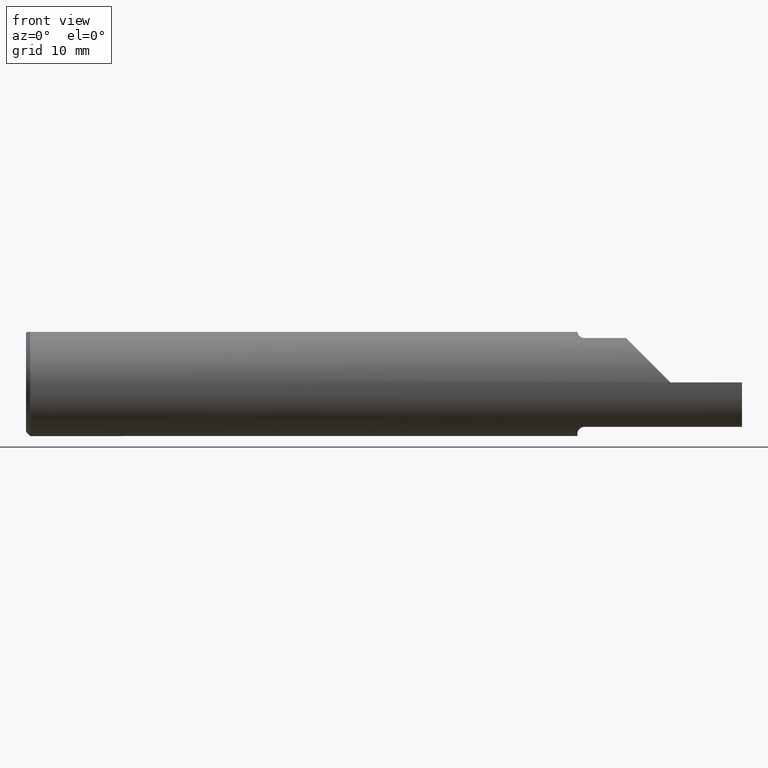
[diagram: clean part render]
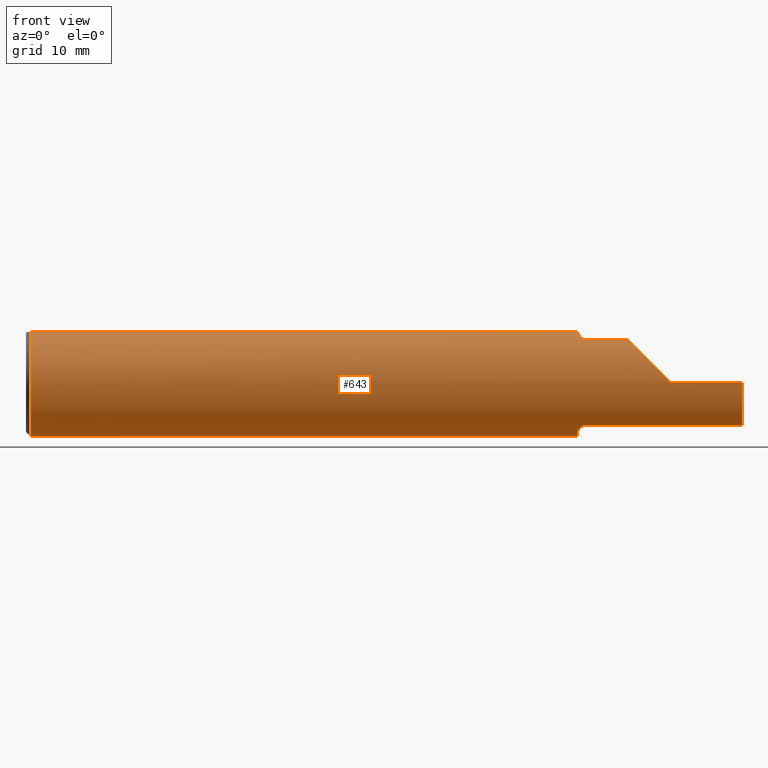
[diagram: same view with one face highlighted and labeled with its STEP entity id]
A machine part, front view. The second image highlights one B-rep face of the part: STEP entity #643.
In plain terms, the highlighted cylindrical surface (partial cylindrical patch) has radius 4.7587 mm, axis along (-1, -0, -0).
Its self-contained STEP definition (entity closure, byte-faithful):
#2 = VECTOR ( 'NONE', #434, 39.37007874015748143 ) ;
#5 = DIRECTION ( 'NONE',  ( 0.000000000000000000, 0.000000000000000000, -1.000000000000000000 ) ) ;
#8 = EDGE_CURVE ( 'NONE', #653, #728, #361, .T. ) ;
#9 = CARTESIAN_POINT ( 'NONE',  ( 2.189466948591779705, -0.1872365873764759991, 0.06088305140821962530 ) ) ;
#10 = ORIENTED_EDGE ( 'NONE', *, *, #814, .T. ) ;
#19 = CIRCLE ( 'NONE', #507, 0.1873499999999999888 ) ;
#27 = CARTESIAN_POINT ( 'NONE',  ( 1.925439896557285868, -0.06737885671737320337, 0.1748695014197203801 ) ) ;
#34 = CARTESIAN_POINT ( 'NONE',  ( 1.934555280550786183, -0.1002805646452516880, 0.1583000352897936946 ) ) ;
#38 = FACE_OUTER_BOUND ( 'NONE', #615, .T. ) ;
#48 = VECTOR ( 'NONE', #893, 39.37007874015748143 ) ;
#49 = EDGE_CURVE ( 'NONE', #421, #764, #953, .T. ) ;
#53 = DIRECTION ( 'NONE',  ( -1.000000000000000000, -0.000000000000000000, -0.000000000000000000 ) ) ;
#54 = ORIENTED_EDGE ( 'NONE', *, *, #312, .T. ) ;
#64 = VECTOR ( 'NONE', #815, 39.37007874015748143 ) ;
#70 = CARTESIAN_POINT ( 'NONE',  ( 1.934565425567610131, -0.1003007981862104464, -0.1582877711856871539 ) ) ;
#71 = DIRECTION ( 'NONE',  ( -1.000000000000000000, -0.000000000000000000, -0.000000000000000000 ) ) ;
#76 = ORIENTED_EDGE ( 'NONE', *, *, #49, .T. ) ;
#106 = CARTESIAN_POINT ( 'NONE',  ( 1.926478687487613861, -0.07534999999999991704, 0.1715295892841814940 ) ) ;
#108 = LINE ( 'NONE', #220, #684 ) ;
#121 = CARTESIAN_POINT ( 'NONE',  ( 2.500000000000000000, 0.000000000000000000, 0.000000000000000000 ) ) ;
#134 = CARTESIAN_POINT ( 'NONE',  ( 1.925210246786177137, -0.06325108694718213631, 0.1763499999999999790 ) ) ;
#135 = CARTESIAN_POINT ( 'NONE',  ( 1.950000000000000178, -0.1111655275381552427, 0.1508053314281814494 ) ) ;
#137 = CARTESIAN_POINT ( 'NONE',  ( 1.931244079504314426, -0.09361870253556393850, -0.1623293170049111833 ) ) ;
#147 = ORIENTED_EDGE ( 'NONE', *, *, #8, .T. ) ;
#148 = CARTESIAN_POINT ( 'NONE',  ( 0.01500000000000079568, 0.000000000000000000, 0.000000000000000000 ) ) ;
#151 = CARTESIAN_POINT ( 'NONE',  ( 0.01500000000000016251, -0.06325108694718359348, 0.1763499999999999790 ) ) ;
#153 = CARTESIAN_POINT ( 'NONE',  ( 0.01500000000000079568, 0.06325108694718213631, 0.1763499999999999790 ) ) ;
#160 = ORIENTED_EDGE ( 'NONE', *, *, #621, .T. ) ;
#165 = ORIENTED_EDGE ( 'NONE', *, *, #869, .F. ) ;
#175 = B_SPLINE_CURVE_WITH_KNOTS ( 'NONE', 3,
 ( #106, #709, #27, #483 ),
 .UNSPECIFIED., .F., .F.,
 ( 4, 4 ),
 ( 0.001294476306160001564, 0.001630041063685024744 ),
 .UNSPECIFIED. ) ;
#185 = CARTESIAN_POINT ( 'NONE',  ( 1.925471628390130530, -0.06898398245409141649, -0.1743260713610383095 ) ) ;
#186 = CARTESIAN_POINT ( 'NONE',  ( 2.135462471271803331, -0.1598910295916955993, 0.1148875287281965335 ) ) ;
#188 = VERTEX_POINT ( 'NONE', #949 ) ;
#199 = CARTESIAN_POINT ( 'NONE',  ( 2.500000000000000000, -0.1873500000000000165, -4.469813191451678053E-17 ) ) ;
#202 = VERTEX_POINT ( 'NONE', #420 ) ;
#211 = CARTESIAN_POINT ( 'NONE',  ( 2.500000000000000000, -0.06325108694718213631, 0.1763499999999999790 ) ) ;
#220 = CARTESIAN_POINT ( 'NONE',  ( 2.172500000000000320, -0.1111655275381552427, 0.1508053314281814494 ) ) ;
#225 = CARTESIAN_POINT ( 'NONE',  ( 1.936565098989693423, -0.1034641170928918136, 0.1562236412899350446 ) ) ;
#228 = VERTEX_POINT ( 'NONE', #134 ) ;
#232 = AXIS2_PLACEMENT_3D ( 'NONE', #121, #53, #935 ) ;
#244 = VERTEX_POINT ( 'NONE', #199 ) ;
#263 = ORIENTED_EDGE ( 'NONE', *, *, #343, .T. ) ;
#284 = LINE ( 'NONE', #750, #855 ) ;
#292 = CARTESIAN_POINT ( 'NONE',  ( 1.927865082443893430, -0.08283314709417988198, -0.1680932348365286877 ) ) ;
#304 = DIRECTION ( 'NONE',  ( 1.000000000000000000, -0.000000000000000000, -0.000000000000000000 ) ) ;
#305 = ORIENTED_EDGE ( 'NONE', *, *, #768, .F. ) ;
#309 = VERTEX_POINT ( 'NONE', #808 ) ;
#312 = EDGE_CURVE ( 'NONE', #228, #421, #967, .T. ) ;
#318 = CARTESIAN_POINT ( 'NONE',  ( 1.929954557781144775, -0.09009039404888789793, 0.1643178600608700690 ) ) ;
#338 = CARTESIAN_POINT ( 'NONE',  ( 2.250000000000000000, -0.1873499999999999888, -4.469813191451678053E-17 ) ) ;
#340 = CARTESIAN_POINT ( 'NONE',  ( 1.925000000000000266, -0.05559153948241538773, -0.1789122780526117285 ) ) ;
#341 = ORIENTED_EDGE ( 'NONE', *, *, #699, .F. ) ;
#343 = EDGE_CURVE ( 'NONE', #309, #188, #804, .T. ) ;
#349 = AXIS2_PLACEMENT_3D ( 'NONE', #552, #397, #854 ) ;
#351 = CIRCLE ( 'NONE', #477, 0.1873499999999999888 ) ;
#361 = CIRCLE ( 'NONE', #349, 0.1873499999999999888 ) ;
#370 = CARTESIAN_POINT ( 'NONE',  ( 1.936554031168355783, -0.1034518926464918220, -0.1562319468430166391 ) ) ;
#378 =( BOUNDED_CURVE ( )  B_SPLINE_CURVE ( 3, ( #571, #9, #186, #489 ),
 .UNSPECIFIED., .F., .T. ) 
 B_SPLINE_CURVE_WITH_KNOTS ( ( 4, 4 ),
 ( 4.714257142666966161, 5.647961724597865718 ),
 .UNSPECIFIED. ) 
 CURVE ( )  GEOMETRIC_REPRESENTATION_ITEM ( )  RATIONAL_B_SPLINE_CURVE ( ( 1.000000000000000000, 0.9286596154903572486, 0.9286596154903572486, 1.000000000000000000 ) ) 
 REPRESENTATION_ITEM ( '' )  );
#397 = DIRECTION ( 'NONE',  ( -1.000000000000000000, -0.000000000000000000, -0.000000000000000000 ) ) ;
#409 = CIRCLE ( 'NONE', #524, 0.1873499999999999888 ) ;
#413 = CARTESIAN_POINT ( 'NONE',  ( 0.01500000000000079568, 0.000000000000000000, 0.000000000000000000 ) ) ;
#420 = CARTESIAN_POINT ( 'NONE',  ( 2.500000000000000000, -0.1111655275381552010, -0.1508053314281814494 ) ) ;
#421 = VERTEX_POINT ( 'NONE', #151 ) ;
#434 = DIRECTION ( 'NONE',  ( -1.000000000000000000, -0.000000000000000000, -0.000000000000000000 ) ) ;
#440 = CARTESIAN_POINT ( 'NONE',  ( 2.500000000000000000, 0.000000000000000000, 0.000000000000000000 ) ) ;
#441 = EDGE_CURVE ( 'NONE', #817, #851, #676, .T. ) ;
#445 = DIRECTION ( 'NONE',  ( 1.000000000000000000, 0.000000000000000000, 0.000000000000000000 ) ) ;
#454 = ORIENTED_EDGE ( 'NONE', *, *, #668, .T. ) ;
#460 = CARTESIAN_POINT ( 'NONE',  ( 1.942178388317598481, -0.1087237717143361843, 0.1525793417461625279 ) ) ;
#464 = CARTESIAN_POINT ( 'NONE',  ( 1.950000000000000178, -0.1111655275381552427, -0.1508053314281814494 ) ) ;
#476 = EDGE_CURVE ( 'NONE', #592, #228, #175, .T. ) ;
#477 = AXIS2_PLACEMENT_3D ( 'NONE', #520, #754, #5 ) ;
#483 = CARTESIAN_POINT ( 'NONE',  ( 1.925210246786177137, -0.06325108694718213631, 0.1763499999999999790 ) ) ;
#489 = CARTESIAN_POINT ( 'NONE',  ( 2.099544668571818207, -0.1111655275381547570, 0.1508053314281816715 ) ) ;
#495 = VERTEX_POINT ( 'NONE', #559 ) ;
#507 = AXIS2_PLACEMENT_3D ( 'NONE', #440, #445, #527 ) ;
#512 = ORIENTED_EDGE ( 'NONE', *, *, #929, .T. ) ;
#515 = CARTESIAN_POINT ( 'NONE',  ( 2.172500000000000320, -0.1111655275381552427, -0.1508053314281814494 ) ) ;
#520 = CARTESIAN_POINT ( 'NONE',  ( 1.925000000000000266, 0.000000000000000000, 0.000000000000000000 ) ) ;
#524 = AXIS2_PLACEMENT_3D ( 'NONE', #148, #304, #539 ) ;
#527 = DIRECTION ( 'NONE',  ( 0.000000000000000000, 0.000000000000000000, -1.000000000000000000 ) ) ;
#539 = DIRECTION ( 'NONE',  ( 0.000000000000000000, 0.000000000000000000, -1.000000000000000000 ) ) ;
#547 = B_SPLINE_CURVE_WITH_KNOTS ( 'NONE', 3,
 ( #340, #570, #185, #943 ),
 .UNSPECIFIED., .F., .F.,
 ( 4, 4 ),
 ( 0.000000000000000000, 0.0005353161947638540065 ),
 .UNSPECIFIED. ) ;
#549 = CARTESIAN_POINT ( 'NONE',  ( 1.945787183057445802, -0.1105751300725857506, -0.1512430703507947061 ) ) ;
#552 = CARTESIAN_POINT ( 'NONE',  ( 2.250000000000000000, 0.000000000000000000, 0.000000000000000000 ) ) ;
#559 = CARTESIAN_POINT ( 'NONE',  ( 1.925000000000000266, -0.05559153948241538773, -0.1789122780526117285 ) ) ;
#570 = CARTESIAN_POINT ( 'NONE',  ( 1.925000000000000266, -0.06239895713696063523, -0.1767970804181337729 ) ) ;
#571 = CARTESIAN_POINT ( 'NONE',  ( 2.250000000000000000, -0.1873496730715054903, 0.0003499999999991848933 ) ) ;
#586 = CARTESIAN_POINT ( 'NONE',  ( 2.099544668571818207, -0.1111655275381547570, 0.1508053314281816715 ) ) ;
#592 = VERTEX_POINT ( 'NONE', #622 ) ;
#598 = CARTESIAN_POINT ( 'NONE',  ( 1.929948053471882696, -0.09007176591159221646, -0.1643281559590496765 ) ) ;
#600 = CARTESIAN_POINT ( 'NONE',  ( 2.500000000000000000, 0.06325108694718213631, 0.1763499999999999790 ) ) ;
#615 = EDGE_LOOP ( 'NONE', ( #341, #838, #454, #147, #10, #305, #631, #770, #54, #76, #512, #813, #165, #160, #263 ) ) ;
#618 = CARTESIAN_POINT ( 'NONE',  ( 1.950000000000000178, -0.1111655275381552427, 0.1508053314281814494 ) ) ;
#621 = EDGE_CURVE ( 'NONE', #495, #309, #547, .T. ) ;
#622 = CARTESIAN_POINT ( 'NONE',  ( 1.926478687487613861, -0.07534999999999991704, 0.1715295892841814940 ) ) ;
#631 = ORIENTED_EDGE ( 'NONE', *, *, #752, .T. ) ;
#638 = CARTESIAN_POINT ( 'NONE',  ( 1.931253303781170105, -0.09363708362384966233, 0.1623181733163006346 ) ) ;
#643 = ADVANCED_FACE ( 'NONE', ( #38 ), #805, .T. ) ;
#653 = VERTEX_POINT ( 'NONE', #338 ) ;
#656 = EDGE_CURVE ( 'NONE', #244, #202, #19, .T. ) ;
#659 = CARTESIAN_POINT ( 'NONE',  ( 2.250000000000000000, -0.1873496730715054903, 0.0003499999999991848933 ) ) ;
#668 = EDGE_CURVE ( 'NONE', #244, #653, #284, .T. ) ;
#672 = CARTESIAN_POINT ( 'NONE',  ( 1.927076714346777297, -0.07913036352372353199, -0.1698689405721950929 ) ) ;
#673 = CARTESIAN_POINT ( 'NONE',  ( 1.947840824787755443, -0.1111655275381552566, 0.1508053314281813939 ) ) ;
#676 = LINE ( 'NONE', #600, #48 ) ;
#677 = CARTESIAN_POINT ( 'NONE',  ( 1.940623984237018540, -0.1074936703607914240, -0.1534529456673628667 ) ) ;
#682 = CARTESIAN_POINT ( 'NONE',  ( 1.927871177471788711, -0.08285827945689638874, 0.1680807655869951678 ) ) ;
#684 = VECTOR ( 'NONE', #831, 39.37007874015748143 ) ;
#699 = EDGE_CURVE ( 'NONE', #202, #188, #888, .T. ) ;
#708 = VERTEX_POINT ( 'NONE', #586 ) ;
#709 = CARTESIAN_POINT ( 'NONE',  ( 1.925855685269239892, -0.07141175738523403149, 0.1732595915669420672 ) ) ;
#714 = CARTESIAN_POINT ( 'NONE',  ( 1.940624326360086638, -0.1074933921529483416, 0.1534530870474001274 ) ) ;
#728 = VERTEX_POINT ( 'NONE', #659 ) ;
#750 = CARTESIAN_POINT ( 'NONE',  ( 2.500000000000000000, -0.1873499999999999888, -4.469813191451678053E-17 ) ) ;
#752 = EDGE_CURVE ( 'NONE', #850, #592, #863, .T. ) ;
#754 = DIRECTION ( 'NONE',  ( 1.000000000000000000, 0.000000000000000000, 0.000000000000000000 ) ) ;
#757 = CARTESIAN_POINT ( 'NONE',  ( 0.01500000000000079568, 0.000000000000000000, -0.1873499999999999888 ) ) ;
#764 = VERTEX_POINT ( 'NONE', #757 ) ;
#768 = EDGE_CURVE ( 'NONE', #850, #708, #108, .T. ) ;
#770 = ORIENTED_EDGE ( 'NONE', *, *, #476, .T. ) ;
#788 = DIRECTION ( 'NONE',  ( 1.000000000000000000, -0.000000000000000000, -0.000000000000000000 ) ) ;
#804 = B_SPLINE_CURVE_WITH_KNOTS ( 'NONE', 3,
 ( #819, #672, #292, #598, #137, #70, #370, #677, #978, #549, #904, #464 ),
 .UNSPECIFIED., .F., .F.,
 ( 4, 2, 2, 2, 2, 4 ),
 ( 0.0005353161947638540065, 0.0008532056447682662310, 0.001171095094772678456, 0.001488984544777090680, 0.001647929269779296792, 0.001806873994781502905 ),
 .UNSPECIFIED. ) ;
#805 = CYLINDRICAL_SURFACE ( 'NONE', #232, 0.1873499999999999888 ) ;
#807 = AXIS2_PLACEMENT_3D ( 'NONE', #413, #788, #877 ) ;
#808 = CARTESIAN_POINT ( 'NONE',  ( 1.926478687487605646, -0.07534999999994895781, -0.1715295892842039482 ) ) ;
#813 = ORIENTED_EDGE ( 'NONE', *, *, #441, .T. ) ;
#814 = EDGE_CURVE ( 'NONE', #728, #708, #378, .T. ) ;
#815 = DIRECTION ( 'NONE',  ( -1.000000000000000000, -0.000000000000000000, -0.000000000000000000 ) ) ;
#817 = VERTEX_POINT ( 'NONE', #153 ) ;
#819 = CARTESIAN_POINT ( 'NONE',  ( 1.926478687487605646, -0.07534999999994895781, -0.1715295892842039482 ) ) ;
#831 = DIRECTION ( 'NONE',  ( 1.000000000000000000, 0.000000000000000000, 0.000000000000000000 ) ) ;
#838 = ORIENTED_EDGE ( 'NONE', *, *, #656, .F. ) ;
#846 = CARTESIAN_POINT ( 'NONE',  ( 1.927079511614913532, -0.07914804615830652035, 0.1698611728947836963 ) ) ;
#850 = VERTEX_POINT ( 'NONE', #618 ) ;
#851 = VERTEX_POINT ( 'NONE', #916 ) ;
#854 = DIRECTION ( 'NONE',  ( 0.000000000000000000, 0.000000000000000000, 1.000000000000000000 ) ) ;
#855 = VECTOR ( 'NONE', #71, 39.37007874015748143 ) ;
#863 = B_SPLINE_CURVE_WITH_KNOTS ( 'NONE', 3,
 ( #135, #673, #974, #460, #714, #225, #34, #638, #318, #682, #846, #940 ),
 .UNSPECIFIED., .F., .F.,
 ( 4, 2, 2, 2, 2, 4 ),
 ( 0.000000000000000000, 0.0001618095382699952353, 0.0003236190765399904706, 0.0006472381530799941685, 0.0009708572296199979206, 0.001294476306160001564 ),
 .UNSPECIFIED. ) ;
#869 = EDGE_CURVE ( 'NONE', #495, #851, #351, .T. ) ;
#877 = DIRECTION ( 'NONE',  ( 0.000000000000000000, 0.000000000000000000, -1.000000000000000000 ) ) ;
#888 = LINE ( 'NONE', #515, #2 ) ;
#893 = DIRECTION ( 'NONE',  ( 1.000000000000000000, 0.000000000000000000, 0.000000000000000000 ) ) ;
#904 = CARTESIAN_POINT ( 'NONE',  ( 1.947842917297107013, -0.1111655275381357721, -0.1508053314282012392 ) ) ;
#916 = CARTESIAN_POINT ( 'NONE',  ( 1.925000000000000266, 0.06325108694718213631, 0.1763499999999999790 ) ) ;
#929 = EDGE_CURVE ( 'NONE', #764, #817, #409, .T. ) ;
#935 = DIRECTION ( 'NONE',  ( 0.000000000000000000, 0.000000000000000000, 1.000000000000000000 ) ) ;
#940 = CARTESIAN_POINT ( 'NONE',  ( 1.926478687487613861, -0.07534999999999991704, 0.1715295892841814940 ) ) ;
#943 = CARTESIAN_POINT ( 'NONE',  ( 1.926478687487605646, -0.07534999999994895781, -0.1715295892842039482 ) ) ;
#949 = CARTESIAN_POINT ( 'NONE',  ( 1.950000000000000178, -0.1111655275381552427, -0.1508053314281814494 ) ) ;
#953 = CIRCLE ( 'NONE', #807, 0.1873499999999999888 ) ;
#967 = LINE ( 'NONE', #211, #64 ) ;
#974 = CARTESIAN_POINT ( 'NONE',  ( 1.945768331180432353, -0.1105668026956974082, 0.1512491196838317842 ) ) ;
#978 = CARTESIAN_POINT ( 'NONE',  ( 1.942175898121774713, -0.1087238381091982370, -0.1525793326322721077 ) ) ;